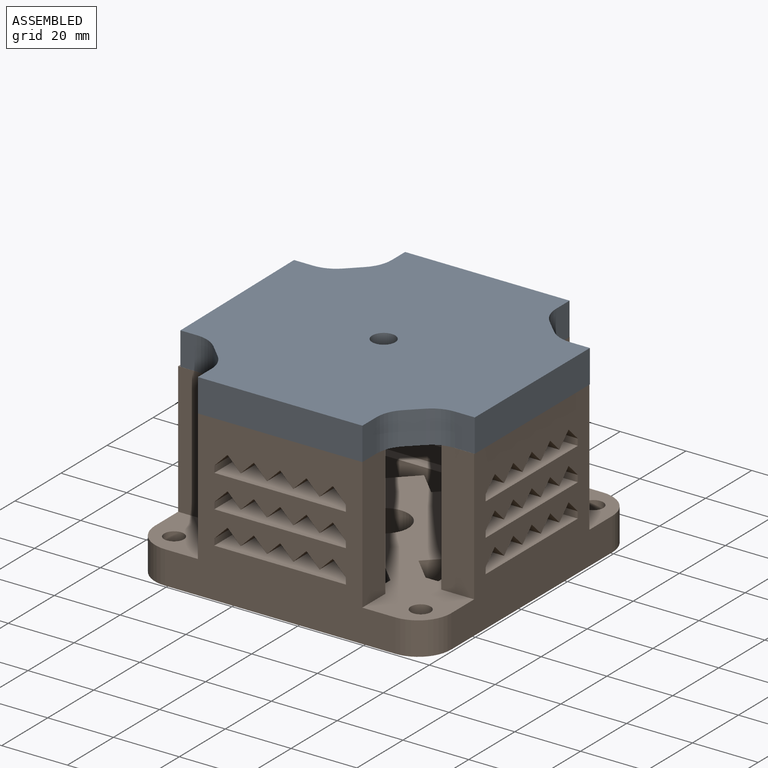
[diagram: assembled view]
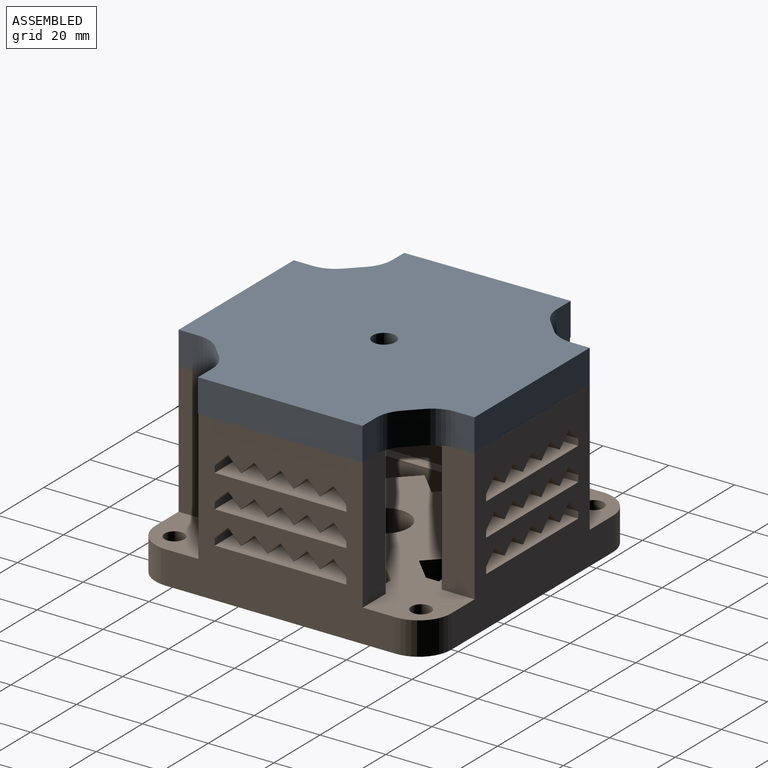
[diagram: assembled view, second angle]
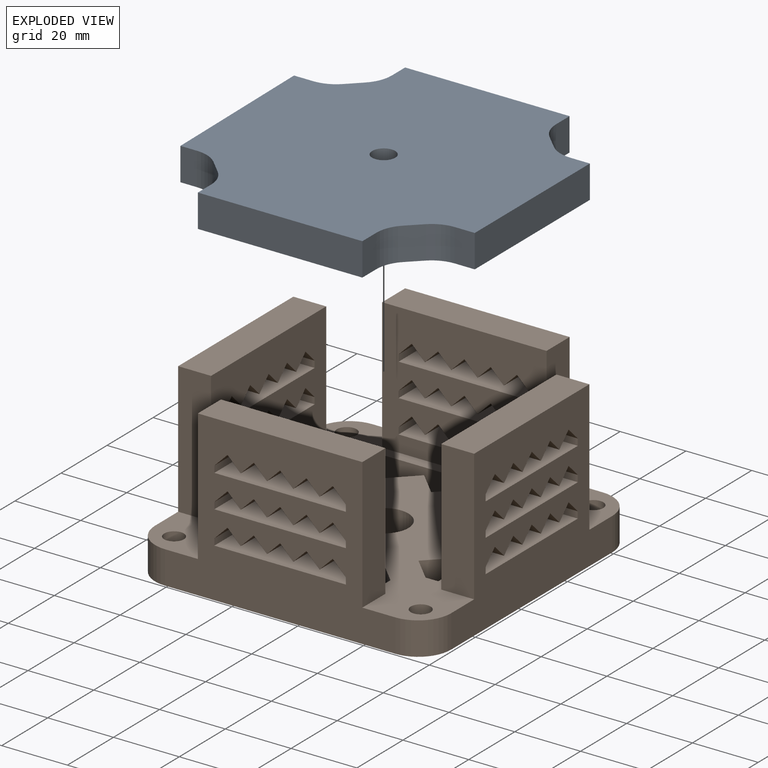
[diagram: exploded view]
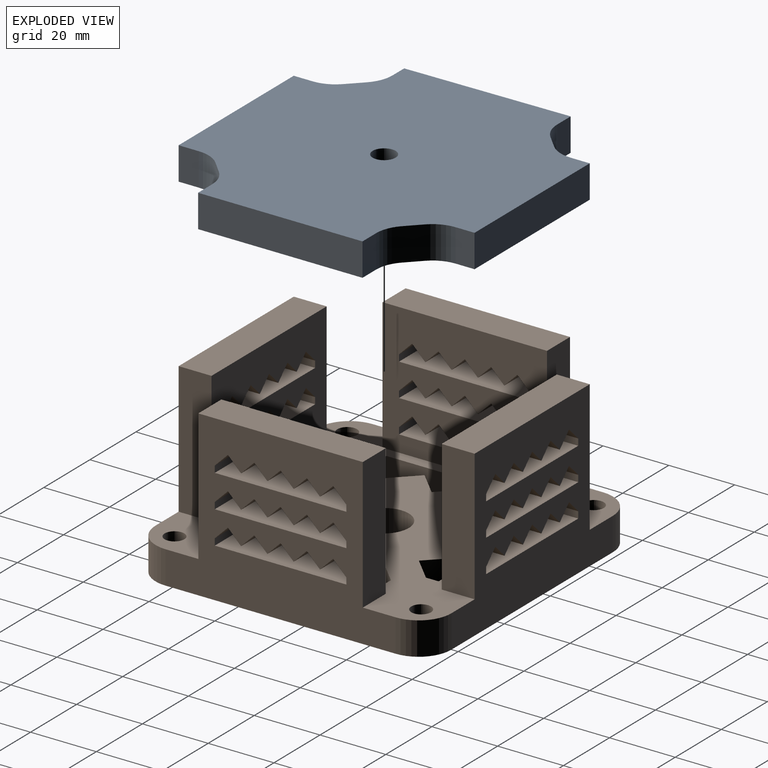
[diagram: exploded view, second angle]
ASSEMBLY  parts=2 mates=3
PART A: 29 faces, bbox 90.1x90x20 mm
  f0: plane 50x10mm, normal (0,1,0), area 500mm2, adj f1,f15,f17,f18
  f1: plane 10x5.78mm, normal (-1,0,0), area 57.8mm2, adj f0,f17,f18,f19
  f2: plane 10x4.09mm, normal (-0.7,0.72,0), area 57.1mm2, adj f17,f18,f19,f21
  f3: plane 10x5.86mm, normal (0,1,0), area 58.6mm2, adj f4,f17,f18,f21
  f4: plane 50.2x10mm, normal (-1,-0.01,0), area 502mm2, adj f3,f5,f17,f18
  f5: plane 10x5.01mm, normal (0,-1,0), area 50.1mm2, adj f4,f17,f18,f22
  f6: plane 10x4.33mm, normal (-0.71,-0.71,0), area 61mm2, adj f17,f18,f22,f23
  f7: plane 10x5.73mm, normal (-1,0,0), area 57.3mm2, adj f8,f17,f18,f23
  f8: plane 50x10mm, normal (0,-1,0), area 500mm2, adj f7,f9,f17,f18
  f9: plane 10x6.13mm, normal (1,0,0), area 61.3mm2, adj f8,f17,f18,f24
  f10: plane 10x4.07mm, normal (0.69,-0.72,0), area 56.4mm2, adj f17,f18,f24,f25
  f11: plane 10x6.09mm, normal (0,-1,0), area 60.9mm2, adj f12,f17,f18,f25
  f12: plane 49.98x10mm, normal (1,0,0), area 499.8mm2, adj f11,f13,f17,f18
  f13: plane 10x5.93mm, normal (0,1,0), area 59.3mm2, adj f12,f17,f18,f26
  f14: plane 10x4.23mm, normal (0.7,0.71,0), area 59.3mm2, adj f17,f18,f20,f26
  f15: plane 10x5.81mm, normal (1,0,0), area 58.1mm2, adj f0,f17,f18,f20
  f16: cylinder r=3.5mm len=20mm, axis (0,0,-1), area 439.8mm2, adj f17,f28
  f17: plane 90.11x89.99mm, normal (0,0,1), area 6671.1mm2, adj f0,f1,f2,f3,f4,f5,f6,f7
  f18: plane 90.11x89.99mm, normal (0,0,-1), area 6532.8mm2, adj f0,f1,f2,f3,f4,f5,f6,f7
  f19: cylinder r=10mm len=10mm, axis (0,0,-1), area 79.9mm2, adj f1,f2,f17,f18
  f20: cylinder r=10mm len=10mm, axis (0,0,1), area 79.4mm2, adj f14,f15,f17,f18
  f21: cylinder r=10mm len=10mm, axis (0,0,1), area 77.1mm2, adj f2,f3,f17,f18
  f22: cylinder r=10mm len=10mm, axis (0,0,1), area 78.3mm2, adj f5,f6,f17,f18
  f23: cylinder r=10mm len=10mm, axis (0,0,1), area 78.8mm2, adj f6,f7,f17,f18
  f24: cylinder r=10mm len=10mm, axis (0,0,1), area 80.6mm2, adj f9,f10,f17,f18
  f25: cylinder r=10mm len=10mm, axis (0,0,1), area 76.4mm2, adj f10,f11,f17,f18
  f26: cylinder r=10mm len=10mm, axis (0,0,1), area 77.7mm2, adj f13,f14,f17,f18
  f27: cylinder r=7.5mm len=15mm, axis (0,0,1), area 471.2mm2, adj f18,f28
  f28: plane 15x15mm, normal (0,0,-1), area 138.2mm2, adj f16,f27
PART B: 223 faces, bbox 90x90x50 mm
  f0: plane 70x50mm, normal (-1,0,0), area 2220mm2, adj f8,f9,f51,f52,f53,f63,f64,f184
  f1: plane 70x50mm, normal (1,0,0), area 2220mm2, adj f8,f9,f54,f55,f56,f65,f66,f145
  f2: plane 50x40mm, normal (1,0,0), area 1520mm2, adj f8,f51,f52,f53,f184,f185,f186,f187
  f3: plane 50x40mm, normal (-1,0,0), area 1520mm2, adj f8,f54,f55,f56,f145,f146,f147,f148
  f4: plane 70x50mm, normal (0,1,0), area 2220mm2, adj f8,f9,f57,f58,f59,f63,f66,f106
  f5: plane 70x50mm, normal (0,-1,0), area 2220mm2, adj f8,f9,f60,f61,f62,f64,f65,f67
  f6: plane 50x40mm, normal (0,-1,0), area 1520mm2, adj f8,f57,f58,f59,f106,f107,f108,f109
  f7: plane 50x40mm, normal (0,1,0), area 1520mm2, adj f8,f60,f61,f62,f67,f68,f69,f70
  f8: plane 90x90mm, normal (0,0,1), area 4447mm2, adj f0,f1,f2,f3,f4,f5,f6,f7
  f9: plane 90x90mm, normal (0,0,-1), area 6447mm2, adj f0,f1,f4,f5,f10,f11,f12,f13
  f10: cylinder r=7.5mm len=15mm, axis (0,0,-1), area 471.2mm2, adj f8,f9
  f11: cylinder r=3mm len=10mm, axis (0,0,-1), area 188.5mm2, adj f8,f9
  f12: cylinder r=3mm len=10mm, axis (0,0,-1), area 188.5mm2, adj f8,f9
  f13: cylinder r=3mm len=10mm, axis (0,0,-1), area 188.5mm2, adj f8,f9
  f14: cylinder r=3mm len=10mm, axis (0,0,-1), area 188.5mm2, adj f8,f9
  f15: plane 10x7.16mm, normal (0.71,0.71,0), area 101.2mm2, adj f8,f9,f16,f23
  f16: plane 10x7.16mm, normal (-0.71,0.71,0), area 101.2mm2, adj f8,f9,f15,f17
  f17: plane 10x7.16mm, normal (0.71,0.71,0), area 101.2mm2, adj f8,f9,f16,f18
  f18: plane 10x7.16mm, normal (-0.71,0.71,0), area 101.2mm2, adj f8,f9,f17,f19
  f19: plane 10x3.85mm, normal (-1,0,0), area 38.5mm2, adj f8,f9,f18,f20
  f20: plane 42.96x10mm, normal (0,-1,0), area 429.6mm2, adj f8,f9,f19,f21
  f21: plane 10x3.85mm, normal (1,0,0), area 38.5mm2, adj f8,f9,f20,f22
  f22: plane 10x7.16mm, normal (0.71,0.71,0), area 101.2mm2, adj f8,f9,f21,f23
  f23: plane 10x7.16mm, normal (-0.71,0.71,0), area 101.2mm2, adj f8,f9,f15,f22
  f24: plane 10x7.16mm, normal (-0.71,0.71,0), area 101.2mm2, adj f8,f9,f25,f32
  f25: plane 10x7.16mm, normal (-0.71,-0.71,0), area 101.2mm2, adj f8,f9,f24,f26
  f26: plane 10x7.16mm, normal (-0.71,0.71,0), area 101.2mm2, adj f8,f9,f25,f27
  f27: plane 10x7.16mm, normal (-0.71,-0.71,0), area 101.2mm2, adj f8,f9,f26,f28
  f28: plane 10x3.85mm, normal (0,-1,0), area 38.5mm2, adj f8,f9,f27,f29
  f29: plane 42.96x10mm, normal (1,0,0), area 429.6mm2, adj f8,f9,f28,f30
  f30: plane 10x3.85mm, normal (0,1,0), area 38.5mm2, adj f8,f9,f29,f31
  f31: plane 10x7.16mm, normal (-0.71,0.71,0), area 101.2mm2, adj f8,f9,f30,f32
  f32: plane 10x7.16mm, normal (-0.71,-0.71,0), area 101.2mm2, adj f8,f9,f24,f31
  f33: plane 10x3.85mm, normal (0,-1,0), area 38.5mm2, adj f8,f9,f34,f41
  f34: plane 10x7.16mm, normal (0.71,-0.71,0), area 101.2mm2, adj f8,f9,f33,f35
  f35: plane 10x7.16mm, normal (0.71,0.71,0), area 101.2mm2, adj f8,f9,f34,f36
  f36: plane 10x7.16mm, normal (0.71,-0.71,0), area 101.2mm2, adj f8,f9,f35,f37
  f37: plane 10x7.16mm, normal (0.71,0.71,0), area 101.2mm2, adj f8,f9,f36,f38
  f38: plane 10x7.16mm, normal (0.71,-0.71,0), area 101.2mm2, adj f8,f9,f37,f39
  f39: plane 10x7.16mm, normal (0.71,0.71,0), area 101.2mm2, adj f8,f9,f38,f40
  f40: plane 10x3.85mm, normal (0,1,0), area 38.5mm2, adj f8,f9,f39,f41
  f41: plane 42.96x10mm, normal (-1,0,0), area 429.6mm2, adj f8,f9,f33,f40
  f42: plane 10x3.85mm, normal (-1,0,0), area 38.5mm2, adj f8,f9,f43,f50
  f43: plane 10x7.16mm, normal (-0.71,-0.71,0), area 101.2mm2, adj f8,f9,f42,f44
  f44: plane 10x7.16mm, normal (0.71,-0.71,0), area 101.2mm2, adj f8,f9,f43,f45
  f45: plane 10x7.16mm, normal (-0.71,-0.71,0), area 101.2mm2, adj f8,f9,f44,f46
  f46: plane 10x7.16mm, normal (0.71,-0.71,0), area 101.2mm2, adj f8,f9,f45,f47
  f47: plane 10x7.16mm, normal (-0.71,-0.71,0), area 101.2mm2, adj f8,f9,f46,f48
  f48: plane 10x7.16mm, normal (0.71,-0.71,0), area 101.2mm2, adj f8,f9,f47,f49
  f49: plane 10x3.85mm, normal (1,0,0), area 38.5mm2, adj f8,f9,f48,f50
  f50: plane 42.96x10mm, normal (0,1,0), area 429.6mm2, adj f8,f9,f42,f49
  f51: plane 40x10mm, normal (0,1,0), area 400mm2, adj f0,f2,f8,f53
  f52: plane 40x10mm, normal (0,-1,0), area 400mm2, adj f0,f2,f8,f53
  f53: plane 50x10mm, normal (0,0,1), area 500mm2, adj f0,f2,f51,f52
  f54: plane 40x10mm, normal (0,1,0), area 400mm2, adj f1,f3,f8,f56
  f55: plane 40x10mm, normal (0,-1,0), area 400mm2, adj f1,f3,f8,f56
  f56: plane 50x10mm, normal (0,0,1), area 500mm2, adj f1,f3,f54,f55
  f57: plane 40x10mm, normal (-1,0,0), area 400mm2, adj f4,f6,f8,f59
  f58: plane 40x10mm, normal (1,0,0), area 400mm2, adj f4,f6,f8,f59
  f59: plane 50x10mm, normal (0,0,1), area 500mm2, adj f4,f6,f57,f58
  f60: plane 40x10mm, normal (-1,0,0), area 400mm2, adj f5,f7,f8,f62
  f61: plane 40x10mm, normal (1,0,0), area 400mm2, adj f5,f7,f8,f62
  f62: plane 50x10mm, normal (0,0,1), area 500mm2, adj f5,f7,f60,f61
  f63: cylinder r=10mm len=10mm, axis (0,0,1), area 157.1mm2, adj f0,f4,f8,f9
  f64: cylinder r=10mm len=10mm, axis (0,0,-1), area 157.1mm2, adj f0,f5,f8,f9
  f65: cylinder r=10mm len=10mm, axis (0,0,1), area 157.1mm2, adj f1,f5,f8,f9
  f66: cylinder r=10mm len=10mm, axis (0,0,-1), area 157.1mm2, adj f1,f4,f8,f9
  f67: plane 10x2mm, normal (-1,0,0), area 20mm2, adj f5,f7,f68,f79
  f68: plane 40x10mm, normal (0,0,1), area 400mm2, adj f5,f7,f67,f69
  f69: plane 10x2mm, normal (1,0,0), area 20mm2, adj f5,f7,f68,f70
  f70: plane 10x4mm, normal (0.71,0,-0.71), area 56.6mm2, adj f5,f7,f69,f71
  f71: plane 10x4mm, normal (-0.71,0,-0.71), area 56.6mm2, adj f5,f7,f70,f72
  f72: plane 10x4mm, normal (0.71,0,-0.71), area 56.6mm2, adj f5,f7,f71,f73
  f73: plane 10x4mm, normal (-0.71,0,-0.71), area 56.6mm2, adj f5,f7,f72,f74
  f74: plane 10x4mm, normal (0.71,0,-0.71), area 56.6mm2, adj f5,f7,f73,f75
  f75: plane 10x4mm, normal (-0.71,0,-0.71), area 56.6mm2, adj f5,f7,f74,f76
  f76: plane 10x4mm, normal (0.71,0,-0.71), area 56.6mm2, adj f5,f7,f75,f77
  f77: plane 10x4mm, normal (-0.71,0,-0.71), area 56.6mm2, adj f5,f7,f76,f78
  f78: plane 10x4mm, normal (0.71,0,-0.71), area 56.6mm2, adj f5,f7,f77,f79
  f79: plane 10x4mm, normal (-0.71,0,-0.71), area 56.6mm2, adj f5,f7,f67,f78
  f80: plane 10x4mm, normal (-0.71,0,-0.71), area 56.6mm2, adj f5,f7,f81,f92
  f81: plane 10x4mm, normal (0.71,0,-0.71), area 56.6mm2, adj f5,f7,f80,f82
  f82: plane 10x4mm, normal (-0.71,0,-0.71), area 56.6mm2, adj f5,f7,f81,f83
  f83: plane 10x2mm, normal (-1,0,0), area 20mm2, adj f5,f7,f82,f84
  f84: plane 40x10mm, normal (0,0,1), area 400mm2, adj f5,f7,f83,f85
  f85: plane 10x2mm, normal (1,0,0), area 20mm2, adj f5,f7,f84,f86
  f86: plane 10x4mm, normal (0.71,0,-0.71), area 56.6mm2, adj f5,f7,f85,f87
  f87: plane 10x4mm, normal (-0.71,0,-0.71), area 56.6mm2, adj f5,f7,f86,f88
  f88: plane 10x4mm, normal (0.71,0,-0.71), area 56.6mm2, adj f5,f7,f87,f89
  f89: plane 10x4mm, normal (-0.71,0,-0.71), area 56.6mm2, adj f5,f7,f88,f90
  f90: plane 10x4mm, normal (0.71,0,-0.71), area 56.6mm2, adj f5,f7,f89,f91
  f91: plane 10x4mm, normal (-0.71,0,-0.71), area 56.6mm2, adj f5,f7,f90,f92
  f92: plane 10x4mm, normal (0.71,0,-0.71), area 56.6mm2, adj f5,f7,f80,f91
  f93: plane 40x10mm, normal (0,0,1), area 400mm2, adj f5,f7,f94,f105
  f94: plane 10x2mm, normal (1,0,0), area 20mm2, adj f5,f7,f93,f95
  f95: plane 10x4mm, normal (0.71,0,-0.71), area 56.6mm2, adj f5,f7,f94,f96
  f96: plane 10x4mm, normal (-0.71,0,-0.71), area 56.6mm2, adj f5,f7,f95,f97
  f97: plane 10x4mm, normal (0.71,0,-0.71), area 56.6mm2, adj f5,f7,f96,f98
  f98: plane 10x4mm, normal (-0.71,0,-0.71), area 56.6mm2, adj f5,f7,f97,f99
  f99: plane 10x4mm, normal (0.71,0,-0.71), area 56.6mm2, adj f5,f7,f98,f100
  f100: plane 10x4mm, normal (-0.71,0,-0.71), area 56.6mm2, adj f5,f7,f99,f101
  f101: plane 10x4mm, normal (0.71,0,-0.71), area 56.6mm2, adj f5,f7,f100,f102
  f102: plane 10x4mm, normal (-0.71,0,-0.71), area 56.6mm2, adj f5,f7,f101,f103
  f103: plane 10x4mm, normal (0.71,0,-0.71), area 56.6mm2, adj f5,f7,f102,f104
  f104: plane 10x4mm, normal (-0.71,0,-0.71), area 56.6mm2, adj f5,f7,f103,f105
  f105: plane 10x2mm, normal (-1,0,0), area 20mm2, adj f5,f7,f93,f104
  f106: plane 10x4mm, normal (-0.71,0,-0.71), area 56.6mm2, adj f4,f6,f107,f118
  f107: plane 10x4mm, normal (0.71,0,-0.71), area 56.6mm2, adj f4,f6,f106,f108
  f108: plane 10x4mm, normal (-0.71,0,-0.71), area 56.6mm2, adj f4,f6,f107,f109
  f109: plane 10x4mm, normal (0.71,0,-0.71), area 56.6mm2, adj f4,f6,f108,f110
  f110: plane 10x4mm, normal (-0.71,0,-0.71), area 56.6mm2, adj f4,f6,f109,f111
  f111: plane 10x4mm, normal (0.71,0,-0.71), area 56.6mm2, adj f4,f6,f110,f112
  f112: plane 10x4mm, normal (-0.71,0,-0.71), area 56.6mm2, adj f4,f6,f111,f113
  f113: plane 10x4mm, normal (0.71,0,-0.71), area 56.6mm2, adj f4,f6,f112,f114
  f114: plane 10x4mm, normal (-0.71,0,-0.71), area 56.6mm2, adj f4,f6,f113,f115
  f115: plane 10x4mm, normal (0.71,0,-0.71), area 56.6mm2, adj f4,f6,f114,f116
  f116: plane 10x2mm, normal (1,0,0), area 20mm2, adj f4,f6,f115,f117
  f117: plane 40x10mm, normal (0,0,1), area 400mm2, adj f4,f6,f116,f118
  f118: plane 10x2mm, normal (-1,0,0), area 20mm2, adj f4,f6,f106,f117
  f119: plane 10x4mm, normal (0.71,0,-0.71), area 56.6mm2, adj f4,f6,f120,f131
  f120: plane 10x4mm, normal (-0.71,0,-0.71), area 56.6mm2, adj f4,f6,f119,f121
  f121: plane 10x4mm, normal (0.71,0,-0.71), area 56.6mm2, adj f4,f6,f120,f122
  f122: plane 10x4mm, normal (-0.71,0,-0.71), area 56.6mm2, adj f4,f6,f121,f123
  f123: plane 10x4mm, normal (0.71,0,-0.71), area 56.6mm2, adj f4,f6,f122,f124
  f124: plane 10x4mm, normal (-0.71,0,-0.71), area 56.6mm2, adj f4,f6,f123,f125
  f125: plane 10x4mm, normal (0.71,0,-0.71), area 56.6mm2, adj f4,f6,f124,f126
  f126: plane 10x2mm, normal (1,0,0), area 20mm2, adj f4,f6,f125,f127
  f127: plane 40x10mm, normal (0,0,1), area 400mm2, adj f4,f6,f126,f128
  f128: plane 10x2mm, normal (-1,0,0), area 20mm2, adj f4,f6,f127,f129
  f129: plane 10x4mm, normal (-0.71,0,-0.71), area 56.6mm2, adj f4,f6,f128,f130
  f130: plane 10x4mm, normal (0.71,0,-0.71), area 56.6mm2, adj f4,f6,f129,f131
  f131: plane 10x4mm, normal (-0.71,0,-0.71), area 56.6mm2, adj f4,f6,f119,f130
  f132: plane 10x2mm, normal (-1,0,0), area 20mm2, adj f4,f6,f133,f144
  f133: plane 10x4mm, normal (-0.71,0,-0.71), area 56.6mm2, adj f4,f6,f132,f134
  f134: plane 10x4mm, normal (0.71,0,-0.71), area 56.6mm2, adj f4,f6,f133,f135
  f135: plane 10x4mm, normal (-0.71,0,-0.71), area 56.6mm2, adj f4,f6,f134,f136
  f136: plane 10x4mm, normal (0.71,0,-0.71), area 56.6mm2, adj f4,f6,f135,f137
  f137: plane 10x4mm, normal (-0.71,0,-0.71), area 56.6mm2, adj f4,f6,f136,f138
  f138: plane 10x4mm, normal (0.71,0,-0.71), area 56.6mm2, adj f4,f6,f137,f139
  f139: plane 10x4mm, normal (-0.71,0,-0.71), area 56.6mm2, adj f4,f6,f138,f140
  f140: plane 10x4mm, normal (0.71,0,-0.71), area 56.6mm2, adj f4,f6,f139,f141
  f141: plane 10x4mm, normal (-0.71,0,-0.71), area 56.6mm2, adj f4,f6,f140,f142
  f142: plane 10x4mm, normal (0.71,0,-0.71), area 56.6mm2, adj f4,f6,f141,f143
  f143: plane 10x2mm, normal (1,0,0), area 20mm2, adj f4,f6,f142,f144
  f144: plane 40x10mm, normal (0,0,1), area 400mm2, adj f4,f6,f132,f143
  f145: plane 10x4mm, normal (0,0.71,-0.71), area 56.6mm2, adj f1,f3,f146,f157
  f146: plane 10x4mm, normal (0,-0.71,-0.71), area 56.6mm2, adj f1,f3,f145,f147
  f147: plane 10x4mm, normal (0,0.71,-0.71), area 56.6mm2, adj f1,f3,f146,f148
  f148: plane 10x4mm, normal (0,-0.71,-0.71), area 56.6mm2, adj f1,f3,f147,f149
  f149: plane 10x4mm, normal (0,0.71,-0.71), area 56.6mm2, adj f1,f3,f148,f150
  f150: plane 10x2mm, normal (0,1,0), area 20mm2, adj f1,f3,f149,f151
  f151: plane 40x10mm, normal (0,0,1), area 400mm2, adj f1,f3,f150,f152
  f152: plane 10x2mm, normal (0,-1,0), area 20mm2, adj f1,f3,f151,f153
  f153: plane 10x4mm, normal (0,-0.71,-0.71), area 56.6mm2, adj f1,f3,f152,f154
  f154: plane 10x4mm, normal (0,0.71,-0.71), area 56.6mm2, adj f1,f3,f153,f155
  f155: plane 10x4mm, normal (0,-0.71,-0.71), area 56.6mm2, adj f1,f3,f154,f156
  f156: plane 10x4mm, normal (0,0.71,-0.71), area 56.6mm2, adj f1,f3,f155,f157
  f157: plane 10x4mm, normal (0,-0.71,-0.71), area 56.6mm2, adj f1,f3,f145,f156
  f158: plane 10x4mm, normal (0,0.71,-0.71), area 56.6mm2, adj f1,f3,f159,f170
  f159: plane 10x4mm, normal (0,-0.71,-0.71), area 56.6mm2, adj f1,f3,f158,f160
  f160: plane 10x4mm, normal (0,0.71,-0.71), area 56.6mm2, adj f1,f3,f159,f161
  f161: plane 10x2mm, normal (0,1,0), area 20mm2, adj f1,f3,f160,f162
  f162: plane 40x10mm, normal (0,0,1), area 400mm2, adj f1,f3,f161,f163
  f163: plane 10x2mm, normal (0,-1,0), area 20mm2, adj f1,f3,f162,f164
  f164: plane 10x4mm, normal (0,-0.71,-0.71), area 56.6mm2, adj f1,f3,f163,f165
  f165: plane 10x4mm, normal (0,0.71,-0.71), area 56.6mm2, adj f1,f3,f164,f166
  f166: plane 10x4mm, normal (0,-0.71,-0.71), area 56.6mm2, adj f1,f3,f165,f167
  f167: plane 10x4mm, normal (0,0.71,-0.71), area 56.6mm2, adj f1,f3,f166,f168
  f168: plane 10x4mm, normal (0,-0.71,-0.71), area 56.6mm2, adj f1,f3,f167,f169
  f169: plane 10x4mm, normal (0,0.71,-0.71), area 56.6mm2, adj f1,f3,f168,f170
  f170: plane 10x4mm, normal (0,-0.71,-0.71), area 56.6mm2, adj f1,f3,f158,f169
  f171: plane 40x10mm, normal (0,0,1), area 400mm2, adj f1,f3,f172,f183
  f172: plane 10x2mm, normal (0,-1,0), area 20mm2, adj f1,f3,f171,f173
  f173: plane 10x4mm, normal (0,-0.71,-0.71), area 56.6mm2, adj f1,f3,f172,f174
  f174: plane 10x4mm, normal (0,0.71,-0.71), area 56.6mm2, adj f1,f3,f173,f175
  f175: plane 10x4mm, normal (0,-0.71,-0.71), area 56.6mm2, adj f1,f3,f174,f176
  f176: plane 10x4mm, normal (0,0.71,-0.71), area 56.6mm2, adj f1,f3,f175,f177
  f177: plane 10x4mm, normal (0,-0.71,-0.71), area 56.6mm2, adj f1,f3,f176,f178
  f178: plane 10x4mm, normal (0,0.71,-0.71), area 56.6mm2, adj f1,f3,f177,f179
  f179: plane 10x4mm, normal (0,-0.71,-0.71), area 56.6mm2, adj f1,f3,f178,f180
  f180: plane 10x4mm, normal (0,0.71,-0.71), area 56.6mm2, adj f1,f3,f179,f181
  f181: plane 10x4mm, normal (0,-0.71,-0.71), area 56.6mm2, adj f1,f3,f180,f182
  f182: plane 10x4mm, normal (0,0.71,-0.71), area 56.6mm2, adj f1,f3,f181,f183
  f183: plane 10x2mm, normal (0,1,0), area 20mm2, adj f1,f3,f171,f182
  f184: plane 10x4mm, normal (0,-0.71,-0.71), area 56.6mm2, adj f0,f2,f185,f196
  f185: plane 10x4mm, normal (0,0.71,-0.71), area 56.6mm2, adj f0,f2,f184,f186
  f186: plane 10x4mm, normal (0,-0.71,-0.71), area 56.6mm2, adj f0,f2,f185,f187
  f187: plane 10x4mm, normal (0,0.71,-0.71), area 56.6mm2, adj f0,f2,f186,f188
  f188: plane 10x4mm, normal (0,-0.71,-0.71), area 56.6mm2, adj f0,f2,f187,f189
  f189: plane 10x2mm, normal (0,-1,0), area 20mm2, adj f0,f2,f188,f190
  f190: plane 40x10mm, normal (0,0,1), area 400mm2, adj f0,f2,f189,f191
  f191: plane 10x2mm, normal (0,1,0), area 20mm2, adj f0,f2,f190,f192
  f192: plane 10x4mm, normal (0,0.71,-0.71), area 56.6mm2, adj f0,f2,f191,f193
  f193: plane 10x4mm, normal (0,-0.71,-0.71), area 56.6mm2, adj f0,f2,f192,f194
  f194: plane 10x4mm, normal (0,0.71,-0.71), area 56.6mm2, adj f0,f2,f193,f195
  f195: plane 10x4mm, normal (0,-0.71,-0.71), area 56.6mm2, adj f0,f2,f194,f196
  f196: plane 10x4mm, normal (0,0.71,-0.71), area 56.6mm2, adj f0,f2,f184,f195
  f197: plane 10x4mm, normal (0,-0.71,-0.71), area 56.6mm2, adj f0,f2,f198,f209
  f198: plane 10x4mm, normal (0,0.71,-0.71), area 56.6mm2, adj f0,f2,f197,f199
  f199: plane 10x4mm, normal (0,-0.71,-0.71), area 56.6mm2, adj f0,f2,f198,f200
  f200: plane 10x4mm, normal (0,0.71,-0.71), area 56.6mm2, adj f0,f2,f199,f201
  f201: plane 10x4mm, normal (0,-0.71,-0.71), area 56.6mm2, adj f0,f2,f200,f202
  f202: plane 10x4mm, normal (0,0.71,-0.71), area 56.6mm2, adj f0,f2,f201,f203
  f203: plane 10x4mm, normal (0,-0.71,-0.71), area 56.6mm2, adj f0,f2,f202,f204
  f204: plane 10x2mm, normal (0,-1,0), area 20mm2, adj f0,f2,f203,f205
  f205: plane 40x10mm, normal (0,0,1), area 400mm2, adj f0,f2,f204,f206
  f206: plane 10x2mm, normal (0,1,0), area 20mm2, adj f0,f2,f205,f207
  f207: plane 10x4mm, normal (0,0.71,-0.71), area 56.6mm2, adj f0,f2,f206,f208
  f208: plane 10x4mm, normal (0,-0.71,-0.71), area 56.6mm2, adj f0,f2,f207,f209
  f209: plane 10x4mm, normal (0,0.71,-0.71), area 56.6mm2, adj f0,f2,f197,f208
  f210: plane 10x2mm, normal (0,1,0), area 20mm2, adj f0,f2,f211,f222
  f211: plane 10x4mm, normal (0,0.71,-0.71), area 56.6mm2, adj f0,f2,f210,f212
  f212: plane 10x4mm, normal (0,-0.71,-0.71), area 56.6mm2, adj f0,f2,f211,f213
  f213: plane 10x4mm, normal (0,0.71,-0.71), area 56.6mm2, adj f0,f2,f212,f214
  f214: plane 10x4mm, normal (0,-0.71,-0.71), area 56.6mm2, adj f0,f2,f213,f215
  f215: plane 10x4mm, normal (0,0.71,-0.71), area 56.6mm2, adj f0,f2,f214,f216
  f216: plane 10x4mm, normal (0,-0.71,-0.71), area 56.6mm2, adj f0,f2,f215,f217
  f217: plane 10x4mm, normal (0,0.71,-0.71), area 56.6mm2, adj f0,f2,f216,f218
  f218: plane 10x4mm, normal (0,-0.71,-0.71), area 56.6mm2, adj f0,f2,f217,f219
  f219: plane 10x4mm, normal (0,0.71,-0.71), area 56.6mm2, adj f0,f2,f218,f220
  f220: plane 10x4mm, normal (0,-0.71,-0.71), area 56.6mm2, adj f0,f2,f219,f221
  f221: plane 10x2mm, normal (0,-1,0), area 20mm2, adj f0,f2,f220,f222
  f222: plane 40x10mm, normal (0,0,1), area 400mm2, adj f0,f2,f210,f221
PLACE A t=(-84.09,-5.37,-47.83)mm
PLACE B t=(-84.09,-5.36,-47.83)mm
MATE planar B.f56 <-> A.f27  axis (0,0,1) through (-44.09,-5.36,2.17)mm
MATE planar B.f5 <-> A.f8  axis (0,-1,0) through (-84.09,-50.36,2.17)mm
MATE planar A.f9 <-> B.f61  axis (1,0,0) through (-59.09,-47.29,7.17)mm
